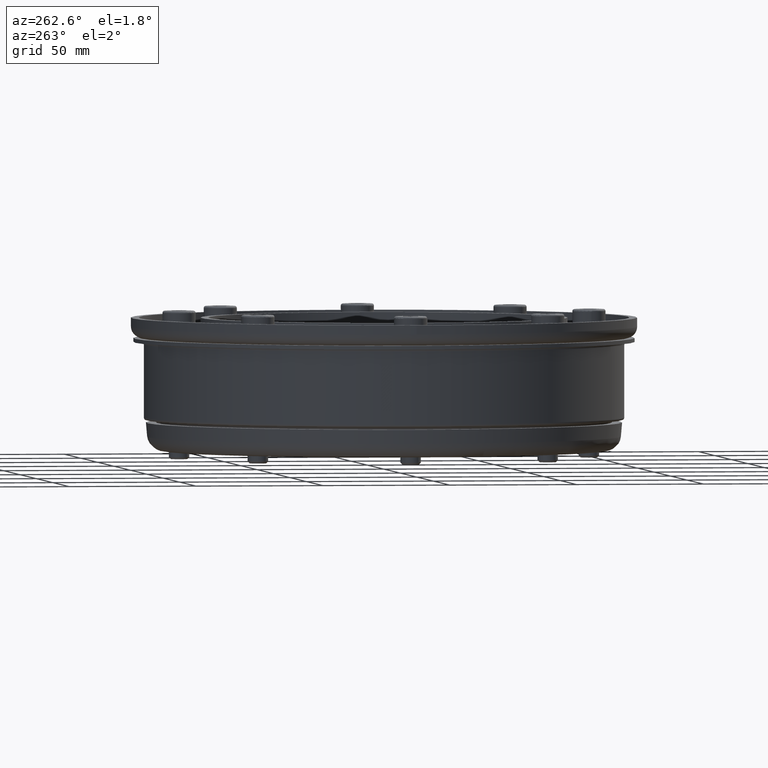
[diagram: clean part render]
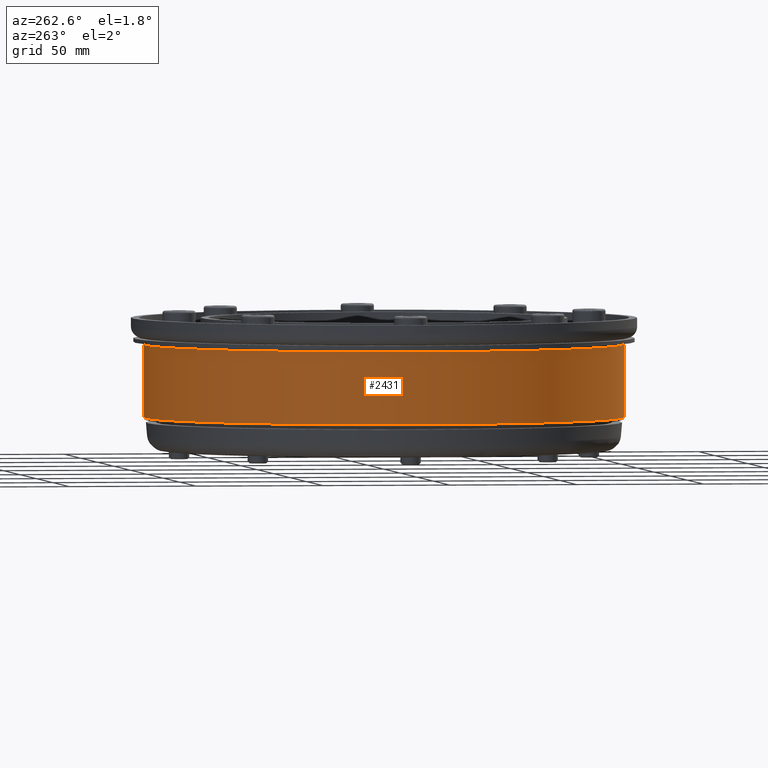
[diagram: same view with one face highlighted and labeled with its STEP entity id]
A machine part, auxiliary view. The second image highlights one B-rep face of the part: STEP entity #2431.
In plain terms, the highlighted cylindrical surface (bore or boss wall) has radius 94 mm, axis along (-0, 0, 1).
Its self-contained STEP definition (entity closure, byte-faithful):
#225=CYLINDRICAL_SURFACE('',#2770,94.);
#311=FACE_OUTER_BOUND('',#441,.T.);
#441=EDGE_LOOP('',(#1888,#1889,#1890,#1891));
#651=LINE('',#4183,#750);
#750=VECTOR('',#3336,90.8);
#910=CIRCLE('',#2769,94.);
#911=CIRCLE('',#2771,94.);
#1156=VERTEX_POINT('',#4177);
#1157=VERTEX_POINT('',#4181);
#1439=EDGE_CURVE('',#1156,#1156,#910,.T.);
#1440=EDGE_CURVE('',#1157,#1157,#911,.T.);
#1441=EDGE_CURVE('',#1157,#1156,#651,.T.);
#1888=ORIENTED_EDGE('',*,*,#1440,.F.);
#1889=ORIENTED_EDGE('',*,*,#1441,.T.);
#1890=ORIENTED_EDGE('',*,*,#1439,.F.);
#1891=ORIENTED_EDGE('',*,*,#1441,.F.);
#2431=ADVANCED_FACE('',(#311),#225,.T.);
#2769=AXIS2_PLACEMENT_3D('',#4179,#3330,#3331);
#2770=AXIS2_PLACEMENT_3D('',#4180,#3332,#3333);
#2771=AXIS2_PLACEMENT_3D('',#4182,#3334,#3335);
#3330=DIRECTION('center_axis',(0.,0.,-1.));
#3331=DIRECTION('ref_axis',(-1.,0.,0.));
#3332=DIRECTION('center_axis',(0.,0.,1.));
#3333=DIRECTION('ref_axis',(-1.,0.,0.));
#3334=DIRECTION('center_axis',(0.,-1.83697019872103E-16,1.));
#3335=DIRECTION('ref_axis',(-1.,1.95422361566067E-18,0.));
#3336=DIRECTION('',(0.,0.,-1.));
#4177=CARTESIAN_POINT('',(94.,-1.09565683996725E-14,9.));
#4179=CARTESIAN_POINT('Origin',(-5.55111512312578E-16,5.55111512312578E-16,
9.));
#4180=CARTESIAN_POINT('Origin',(-5.55111512312578E-16,5.55111512312578E-16,
0.));
#4181=CARTESIAN_POINT('',(94.,1.18830944044256E-14,37.5));
#4182=CARTESIAN_POINT('Origin',(-5.55111512312578E-16,5.55111512312578E-16,
37.5));
#4183=CARTESIAN_POINT('',(94.,1.20667914242977E-14,0.));